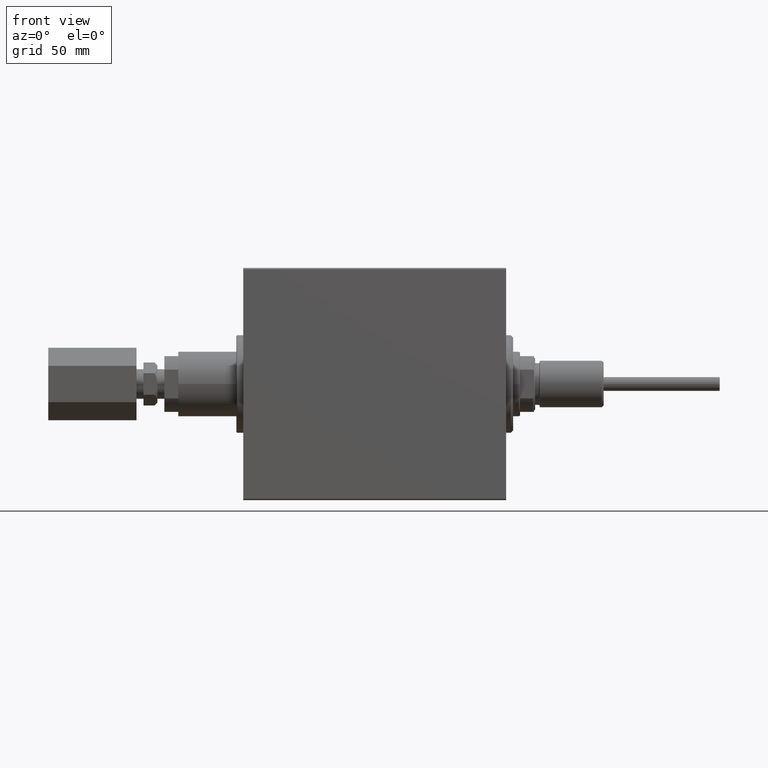
[diagram: clean part render]
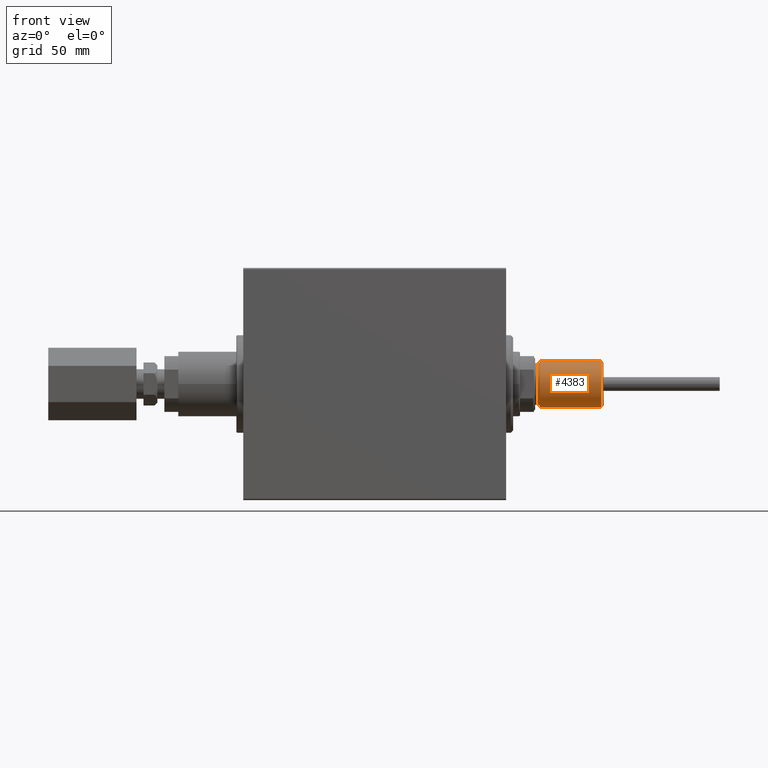
[diagram: same view with one face highlighted and labeled with its STEP entity id]
A machine part, front view. The second image highlights one B-rep face of the part: STEP entity #4383.
In plain terms, the highlighted cylindrical surface (edge-blend (fillet) strip) has radius 10 mm, axis along (1, -0, -0).
Its self-contained STEP definition (entity closure, byte-faithful):
#946 = EDGE_LOOP ( 'NONE', ( #47298, #18879, #20889, #25957 ) ) ;
#1656 = VERTEX_POINT ( 'NONE', #25158 ) ;
#2998 = CIRCLE ( 'NONE', #26803, 10.00000000000000000 ) ;
#4383 = ADVANCED_FACE ( 'NONE', ( #23259 ), #4980, .T. ) ;
#4980 = CYLINDRICAL_SURFACE ( 'NONE', #25200, 10.00000000000000000 ) ;
#5452 = DIRECTION ( 'NONE',  ( -0.000000000000000000, -0.000000000000000000, -1.000000000000000000 ) ) ;
#6282 = VECTOR ( 'NONE', #17794, 1000.000000000000000 ) ;
#7262 = CARTESIAN_POINT ( 'NONE',  ( 0.000000000000000000, 0.000000000000000000, 27.50000000000000000 ) ) ;
#7437 = EDGE_CURVE ( 'NONE', #22104, #34938, #2998, .T. ) ;
#8764 = CARTESIAN_POINT ( 'NONE',  ( 10.00000000000000000, 1.224646799147353256E-15, 27.50000000000000000 ) ) ;
#9315 = DIRECTION ( 'NONE',  ( -1.000000000000000000, 0.000000000000000000, 0.000000000000000000 ) ) ;
#10113 = LINE ( 'NONE', #39414, #6282 ) ;
#10650 = DIRECTION ( 'NONE',  ( 0.000000000000000000, 0.000000000000000000, 1.000000000000000000 ) ) ;
#12493 = CARTESIAN_POINT ( 'NONE',  ( -10.00000000000000000, 0.000000000000000000, 27.50000000000000000 ) ) ;
#13494 = AXIS2_PLACEMENT_3D ( 'NONE', #32771, #47205, #25102 ) ;
#14502 = DIRECTION ( 'NONE',  ( 1.000000000000000000, 0.000000000000000000, 0.000000000000000000 ) ) ;
#17479 = EDGE_CURVE ( 'NONE', #34938, #1656, #10113, .T. ) ;
#17794 = DIRECTION ( 'NONE',  ( -0.000000000000000000, -0.000000000000000000, -1.000000000000000000 ) ) ;
#18879 = ORIENTED_EDGE ( 'NONE', *, *, #7437, .F. ) ;
#20889 = ORIENTED_EDGE ( 'NONE', *, *, #26533, .T. ) ;
#21346 = CARTESIAN_POINT ( 'NONE',  ( -10.00000000000000000, 0.000000000000000000, 27.50000000000000000 ) ) ;
#22104 = VERTEX_POINT ( 'NONE', #12493 ) ;
#23259 = FACE_OUTER_BOUND ( 'NONE', #946, .T. ) ;
#24943 = DIRECTION ( 'NONE',  ( -0.000000000000000000, -0.000000000000000000, -1.000000000000000000 ) ) ;
#25102 = DIRECTION ( 'NONE',  ( 1.000000000000000000, 0.000000000000000000, 0.000000000000000000 ) ) ;
#25158 = CARTESIAN_POINT ( 'NONE',  ( 10.00000000000000000, 1.224646799147353256E-15, 0.7999999999999986011 ) ) ;
#25200 = AXIS2_PLACEMENT_3D ( 'NONE', #34297, #5452, #9315 ) ;
#25730 = VECTOR ( 'NONE', #24943, 1000.000000000000000 ) ;
#25957 = ORIENTED_EDGE ( 'NONE', *, *, #28555, .T. ) ;
#26533 = EDGE_CURVE ( 'NONE', #22104, #33157, #33740, .T. ) ;
#26803 = AXIS2_PLACEMENT_3D ( 'NONE', #7262, #10650, #14502 ) ;
#28555 = EDGE_CURVE ( 'NONE', #33157, #1656, #42648, .T. ) ;
#30722 = CARTESIAN_POINT ( 'NONE',  ( -10.00000000000000000, 0.000000000000000000, 0.7999999999999986011 ) ) ;
#32771 = CARTESIAN_POINT ( 'NONE',  ( 0.000000000000000000, 0.000000000000000000, 0.7999999999999986011 ) ) ;
#33157 = VERTEX_POINT ( 'NONE', #30722 ) ;
#33740 = LINE ( 'NONE', #21346, #25730 ) ;
#34297 = CARTESIAN_POINT ( 'NONE',  ( 0.000000000000000000, 0.000000000000000000, 27.50000000000000000 ) ) ;
#34938 = VERTEX_POINT ( 'NONE', #8764 ) ;
#39414 = CARTESIAN_POINT ( 'NONE',  ( 10.00000000000000000, 1.224646799147353256E-15, 27.50000000000000000 ) ) ;
#42648 = CIRCLE ( 'NONE', #13494, 10.00000000000000000 ) ;
#47205 = DIRECTION ( 'NONE',  ( -0.000000000000000000, -0.000000000000000000, 1.000000000000000000 ) ) ;
#47298 = ORIENTED_EDGE ( 'NONE', *, *, #17479, .F. ) ;